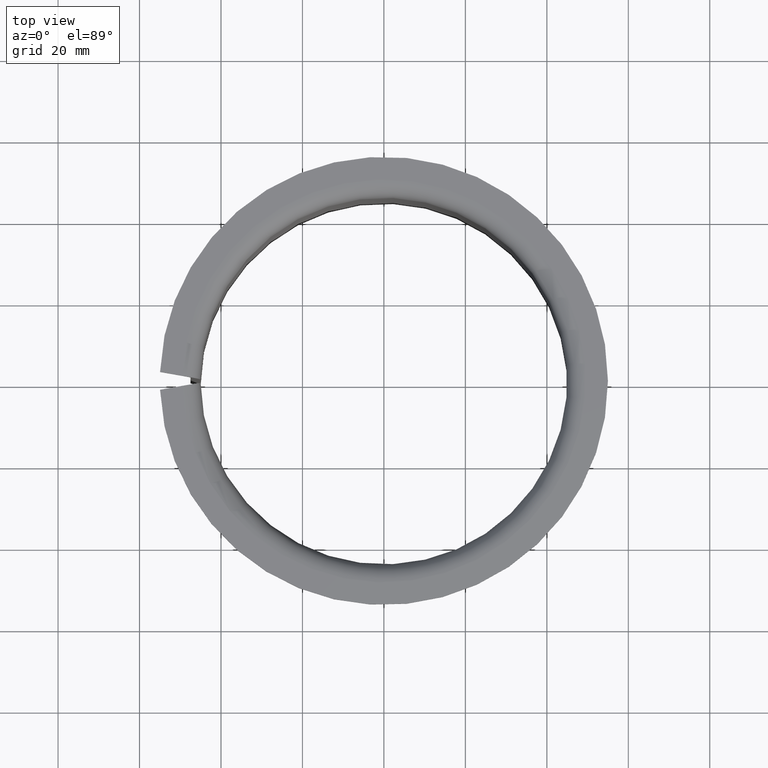
[diagram: clean part render]
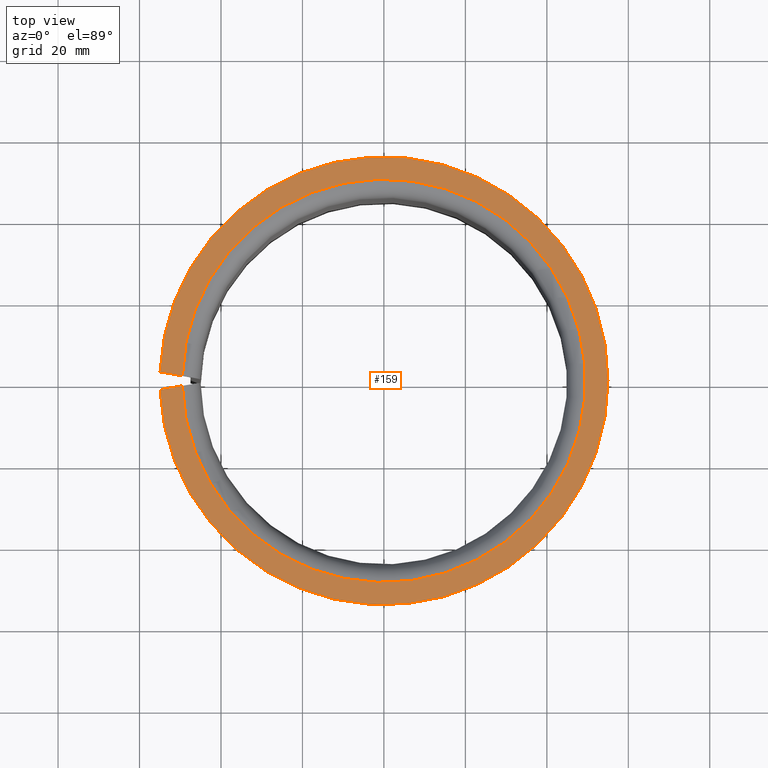
[diagram: same view with one face highlighted and labeled with its STEP entity id]
A machine part, top view. The second image highlights one B-rep face of the part: STEP entity #159.
In plain terms, the highlighted planar face has unit normal (0, -0, 1).
Its self-contained STEP definition (entity closure, byte-faithful):
#159=ADVANCED_FACE('',(#179),#180,.T.);
#179=FACE_OUTER_BOUND('',#204,.T.);
#180=PLANE('',#205);
#204=EDGE_LOOP('',(#264,#265,#266,#267));
#205=AXIS2_PLACEMENT_3D('',#268,#269,#270);
#264=ORIENTED_EDGE('',*,*,#327,.T.);
#265=ORIENTED_EDGE('',*,*,#335,.F.);
#266=ORIENTED_EDGE('',*,*,#333,.F.);
#267=ORIENTED_EDGE('',*,*,#313,.T.);
#268=CARTESIAN_POINT('',(0.055,6.93889390390723E-018,0.09));
#269=DIRECTION('',(0.0,6.12323399573677E-017,1.0));
#270=DIRECTION('',(0.0,-1.0,6.12323399573677E-017));
#313=EDGE_CURVE('',#345,#343,#346,.T.);
#327=EDGE_CURVE('',#343,#369,#371,.T.);
#333=EDGE_CURVE('',#345,#380,#381,.T.);
#335=EDGE_CURVE('',#380,#369,#383,.T.);
#343=VERTEX_POINT('',#393);
#345=VERTEX_POINT('',#412);
#346=LINE('',#413,#414);
#369=VERTEX_POINT('',#466);
#371=CIRCLE('',#485,0.0495);
#380=VERTEX_POINT('',#510);
#381=CIRCLE('',#511,0.055);
#383=LINE('',#514,#515);
#393=CARTESIAN_POINT('',(0.0494846763526473,-0.00123158689248811,0.09));
#412=CARTESIAN_POINT('',(0.054956128321563,-0.0021963514982584,0.09));
#413=CARTESIAN_POINT('',(0.0621961550602441,-0.00347296355333859,0.09));
#414=VECTOR('',#530,1.0);
#466=CARTESIAN_POINT('',(0.0494846763526473,0.00123158689248812,0.09));
#485=AXIS2_PLACEMENT_3D('',#545,#546,#547);
#510=CARTESIAN_POINT('',(0.054956128321563,0.00219635149825841,0.09));
#511=AXIS2_PLACEMENT_3D('',#558,#559,#560);
#514=CARTESIAN_POINT('',(0.0621961550602441,0.00347296355333861,0.09));
#515=VECTOR('',#562,1.0);
#530=DIRECTION('',(-0.984807753012208,0.173648177666931,0.0));
#545=CARTESIAN_POINT('',(0.0,6.93889390390723E-018,0.09));
#546=DIRECTION('',(0.0,-6.12323399573677E-017,-1.0));
#547=DIRECTION('',(0.0,1.0,-6.12323399573677E-017));
#558=CARTESIAN_POINT('',(0.0,6.93889390390723E-018,0.09));
#559=DIRECTION('',(0.0,-6.12323399573677E-017,-1.0));
#560=DIRECTION('',(0.0,1.0,-6.12323399573677E-017));
#562=DIRECTION('',(-0.984807753012208,-0.173648177666931,2.0942693688385E-017));